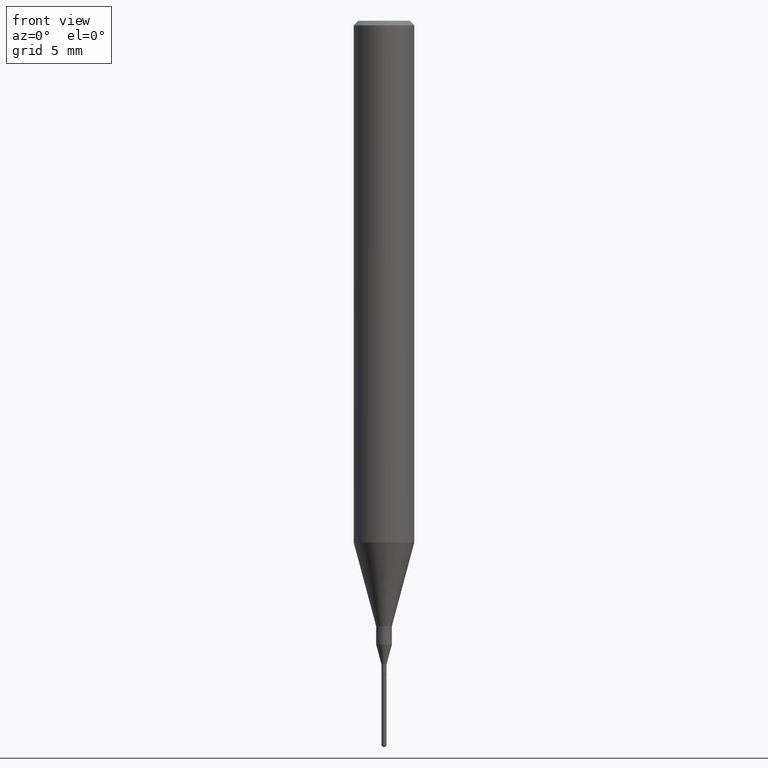
[diagram: clean part render]
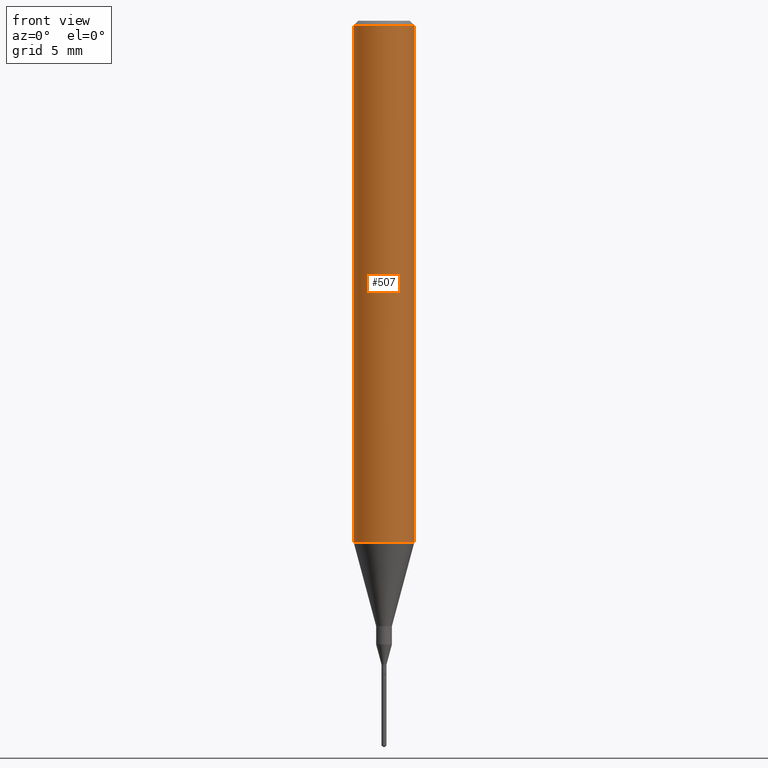
[diagram: same view with one face highlighted and labeled with its STEP entity id]
A machine part, front view. The second image highlights one B-rep face of the part: STEP entity #507.
In plain terms, the highlighted cylindrical surface (edge-blend (fillet) strip) has radius 1.5875 mm, axis along (-0, 0, 1).
Its self-contained STEP definition (entity closure, byte-faithful):
#26 = CIRCLE ( 'NONE', #415, 0.06250000000000000000 ) ;
#28 = DIRECTION ( 'NONE',  ( -2.445468806185136597E-29, 3.491481338843145583E-15, 1.000000000000000000 ) ) ;
#34 = CARTESIAN_POINT ( 'NONE',  ( 0.000000000000000000, 0.000000000000000000, 0.000000000000000000 ) ) ;
#35 = DIRECTION ( 'NONE',  ( -2.445468806185136877E-29, 3.491481338843145188E-15, 1.000000000000000000 ) ) ;
#48 = VERTEX_POINT ( 'NONE', #338 ) ;
#75 = DIRECTION ( 'NONE',  ( 1.000000000000000000, -6.982962677686266711E-15, 4.876176775795935793E-29 ) ) ;
#78 = LINE ( 'NONE', #260, #295 ) ;
#93 = CARTESIAN_POINT ( 'NONE',  ( -0.06250000000000006939, 4.440892098500631092E-16, -3.074334431409319267E-30 ) ) ;
#143 = CARTESIAN_POINT ( 'NONE',  ( 0.06250000000000000000, -4.691678049070463404E-16, -0.009375000000000060368 ) ) ;
#147 = VECTOR ( 'NONE', #364, 39.37007874015748143 ) ;
#149 = ORIENTED_EDGE ( 'NONE', *, *, #223, .T. ) ;
#167 = CARTESIAN_POINT ( 'NONE',  ( 2.634730117954813298E-29, -3.761696332605275695E-15, -1.077392650149939346 ) ) ;
#172 = CARTESIAN_POINT ( 'NONE',  ( 2.292627005798580623E-31, -3.273263755165470184E-17, -0.009375000000000060368 ) ) ;
#210 = DIRECTION ( 'NONE',  ( 1.000000000000000000, -6.982962677686264344E-15, 0.000000000000000000 ) ) ;
#214 = CARTESIAN_POINT ( 'NONE',  ( -0.06250000000000000000, -1.453125275228401137E-15, -0.009375000000000060368 ) ) ;
#223 = EDGE_CURVE ( 'NONE', #323, #282, #78, .T. ) ;
#230 = VERTEX_POINT ( 'NONE', #214 ) ;
#239 = ORIENTED_EDGE ( 'NONE', *, *, #585, .F. ) ;
#253 = FACE_OUTER_BOUND ( 'NONE', #330, .T. ) ;
#260 = CARTESIAN_POINT ( 'NONE',  ( 0.06250000000000006939, -4.364351673553921624E-16, 3.047610484872463374E-30 ) ) ;
#276 = CARTESIAN_POINT ( 'NONE',  ( 0.06250000000000012490, -4.198131499960668153E-15, -1.077392650149939346 ) ) ;
#282 = VERTEX_POINT ( 'NONE', #143 ) ;
#295 = VECTOR ( 'NONE', #35, 39.37007874015748143 ) ;
#310 = DIRECTION ( 'NONE',  ( -2.445468806185136597E-29, 3.491481338843145583E-15, 1.000000000000000000 ) ) ;
#316 = LINE ( 'NONE', #93, #147 ) ;
#323 = VERTEX_POINT ( 'NONE', #276 ) ;
#330 = EDGE_LOOP ( 'NONE', ( #336, #422, #149, #239 ) ) ;
#336 = ORIENTED_EDGE ( 'NONE', *, *, #340, .F. ) ;
#338 = CARTESIAN_POINT ( 'NONE',  ( -0.06250000000000012490, -3.317607122755211895E-15, -1.077392650149939346 ) ) ;
#340 = EDGE_CURVE ( 'NONE', #48, #230, #316, .T. ) ;
#351 = DIRECTION ( 'NONE',  ( 1.000000000000000000, -6.982962677686266711E-15, 0.000000000000000000 ) ) ;
#364 = DIRECTION ( 'NONE',  ( -2.445468806185136877E-29, 3.491481338843145188E-15, 1.000000000000000000 ) ) ;
#389 = CYLINDRICAL_SURFACE ( 'NONE', #489, 0.06250000000000006939 ) ;
#415 = AXIS2_PLACEMENT_3D ( 'NONE', #172, #310, #351 ) ;
#422 = ORIENTED_EDGE ( 'NONE', *, *, #514, .T. ) ;
#489 = AXIS2_PLACEMENT_3D ( 'NONE', #34, #578, #75 ) ;
#507 = ADVANCED_FACE ( 'NONE', ( #253 ), #389, .T. ) ;
#514 = EDGE_CURVE ( 'NONE', #48, #323, #587, .T. ) ;
#529 = AXIS2_PLACEMENT_3D ( 'NONE', #167, #28, #210 ) ;
#578 = DIRECTION ( 'NONE',  ( -2.445468806185136597E-29, 3.491481338843145583E-15, 1.000000000000000000 ) ) ;
#585 = EDGE_CURVE ( 'NONE', #230, #282, #26, .T. ) ;
#587 = CIRCLE ( 'NONE', #529, 0.06250000000000012490 ) ;